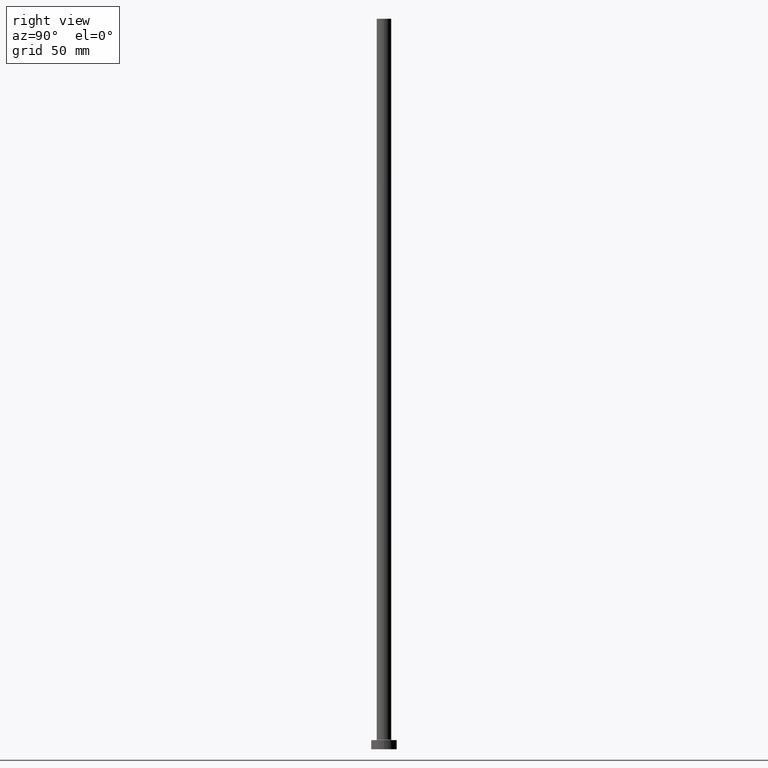
[diagram: clean part render]
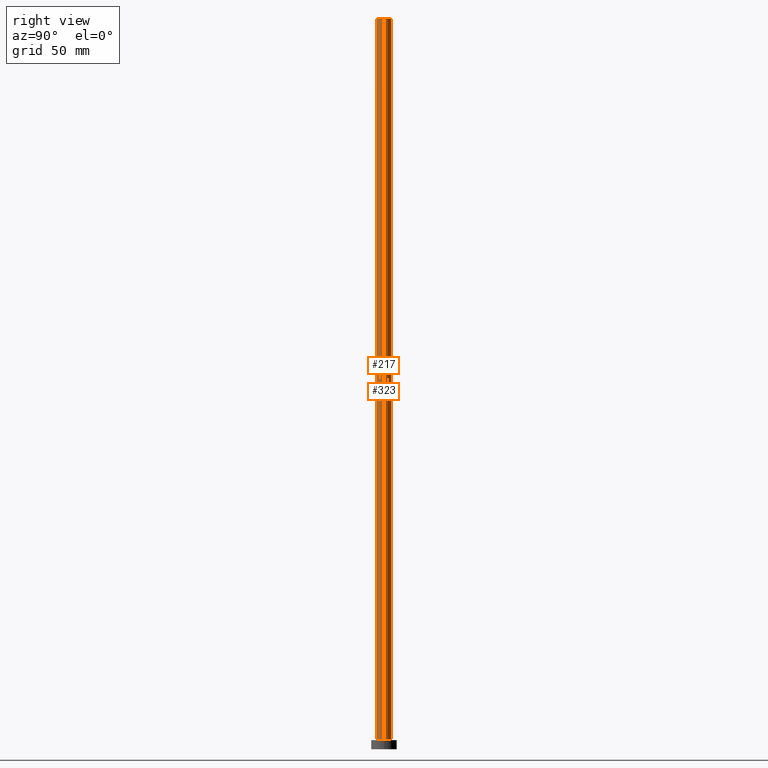
[diagram: same view with one multi-face feature highlighted, each face labeled with its STEP entity id]
A machine part, right view. The highlighted faces form ONE feature: a constant-radius fillet chain: 2 tangent blend faces with common blend radius 4 mm. The faces share edges in the B-rep.
Their STEP definitions:
[1] entity #323 (Cylinder):
#8 = DIRECTION ( 'NONE',  ( 1.000000000000000000, 0.000000000000000000, 0.000000000000000000 ) ) ;
#18 = CIRCLE ( 'NONE', #368, 4.000000000000000000 ) ;
#44 = CARTESIAN_POINT ( 'NONE',  ( 0.000000000000000000, 0.000000000000000000, 400.0000000000000000 ) ) ;
#45 = VERTEX_POINT ( 'NONE', #62 ) ;
#62 = CARTESIAN_POINT ( 'NONE',  ( 4.000000000000000000, 4.898587196589411843E-16, 400.0000000000000000 ) ) ;
#70 = FACE_OUTER_BOUND ( 'NONE', #410, .T. ) ;
#77 = CARTESIAN_POINT ( 'NONE',  ( 0.000000000000000000, 0.000000000000000000, 400.0000000000000000 ) ) ;
#84 = ORIENTED_EDGE ( 'NONE', *, *, #174, .F. ) ;
#109 = CARTESIAN_POINT ( 'NONE',  ( 4.000000000000000000, 4.898587196589411843E-16, 400.0000000000000000 ) ) ;
#118 = ORIENTED_EDGE ( 'NONE', *, *, #404, .T. ) ;
#137 = DIRECTION ( 'NONE',  ( -0.000000000000000000, -0.000000000000000000, -1.000000000000000000 ) ) ;
#141 = CYLINDRICAL_SURFACE ( 'NONE', #203, 4.000000000000000000 ) ;
#174 = EDGE_CURVE ( 'NONE', #216, #213, #276, .T. ) ;
#180 = DIRECTION ( 'NONE',  ( 1.000000000000000000, 0.000000000000000000, 0.000000000000000000 ) ) ;
#203 = AXIS2_PLACEMENT_3D ( 'NONE', #77, #391, #322 ) ;
#207 = LINE ( 'NONE', #109, #251 ) ;
#212 = CARTESIAN_POINT ( 'NONE',  ( 4.000000000000000000, 4.898587196589411843E-16, 5.500000000000005329 ) ) ;
#213 = VERTEX_POINT ( 'NONE', #313 ) ;
#216 = VERTEX_POINT ( 'NONE', #248 ) ;
#218 = CIRCLE ( 'NONE', #283, 4.000000000000000000 ) ;
#248 = CARTESIAN_POINT ( 'NONE',  ( -4.000000000000000000, 0.000000000000000000, 400.0000000000000000 ) ) ;
#251 = VECTOR ( 'NONE', #286, 1000.000000000000000 ) ;
#274 = ORIENTED_EDGE ( 'NONE', *, *, #353, .T. ) ;
#276 = LINE ( 'NONE', #314, #396 ) ;
#283 = AXIS2_PLACEMENT_3D ( 'NONE', #325, #358, #8 ) ;
#286 = DIRECTION ( 'NONE',  ( -0.000000000000000000, -0.000000000000000000, -1.000000000000000000 ) ) ;
#291 = DIRECTION ( 'NONE',  ( 0.000000000000000000, 0.000000000000000000, 1.000000000000000000 ) ) ;
#299 = ORIENTED_EDGE ( 'NONE', *, *, #407, .F. ) ;
#313 = CARTESIAN_POINT ( 'NONE',  ( -4.000000000000000000, 0.000000000000000000, 5.500000000000005329 ) ) ;
#314 = CARTESIAN_POINT ( 'NONE',  ( -4.000000000000000000, 0.000000000000000000, 400.0000000000000000 ) ) ;
#322 = DIRECTION ( 'NONE',  ( -1.000000000000000000, 0.000000000000000000, 0.000000000000000000 ) ) ;
#323 = ADVANCED_FACE ( 'NONE', ( #70 ), #141, .T. ) ;
#325 = CARTESIAN_POINT ( 'NONE',  ( 0.000000000000000000, 0.000000000000000000, 5.500000000000005329 ) ) ;
#353 = EDGE_CURVE ( 'NONE', #45, #380, #207, .T. ) ;
#358 = DIRECTION ( 'NONE',  ( 0.000000000000000000, 0.000000000000000000, 1.000000000000000000 ) ) ;
#368 = AXIS2_PLACEMENT_3D ( 'NONE', #44, #291, #180 ) ;
#380 = VERTEX_POINT ( 'NONE', #212 ) ;
#391 = DIRECTION ( 'NONE',  ( -0.000000000000000000, -0.000000000000000000, -1.000000000000000000 ) ) ;
#396 = VECTOR ( 'NONE', #137, 1000.000000000000000 ) ;
#404 = EDGE_CURVE ( 'NONE', #380, #213, #218, .T. ) ;
#407 = EDGE_CURVE ( 'NONE', #45, #216, #18, .T. ) ;
#410 = EDGE_LOOP ( 'NONE', ( #299, #274, #118, #84 ) ) ;
[2] entity #217 (Cylinder):
#35 = DIRECTION ( 'NONE',  ( -1.000000000000000000, 0.000000000000000000, 0.000000000000000000 ) ) ;
#45 = VERTEX_POINT ( 'NONE', #62 ) ;
#62 = CARTESIAN_POINT ( 'NONE',  ( 4.000000000000000000, 4.898587196589411843E-16, 400.0000000000000000 ) ) ;
#64 = FACE_OUTER_BOUND ( 'NONE', #78, .T. ) ;
#74 = ORIENTED_EDGE ( 'NONE', *, *, #260, .T. ) ;
#78 = EDGE_LOOP ( 'NONE', ( #250, #227, #103, #74 ) ) ;
#92 = EDGE_CURVE ( 'NONE', #216, #45, #184, .T. ) ;
#103 = ORIENTED_EDGE ( 'NONE', *, *, #174, .T. ) ;
#104 = DIRECTION ( 'NONE',  ( 1.000000000000000000, 0.000000000000000000, 0.000000000000000000 ) ) ;
#109 = CARTESIAN_POINT ( 'NONE',  ( 4.000000000000000000, 4.898587196589411843E-16, 400.0000000000000000 ) ) ;
#137 = DIRECTION ( 'NONE',  ( -0.000000000000000000, -0.000000000000000000, -1.000000000000000000 ) ) ;
#139 = CARTESIAN_POINT ( 'NONE',  ( 0.000000000000000000, 0.000000000000000000, 400.0000000000000000 ) ) ;
#174 = EDGE_CURVE ( 'NONE', #216, #213, #276, .T. ) ;
#184 = CIRCLE ( 'NONE', #452, 4.000000000000000000 ) ;
#193 = DIRECTION ( 'NONE',  ( 0.000000000000000000, 0.000000000000000000, 1.000000000000000000 ) ) ;
#207 = LINE ( 'NONE', #109, #251 ) ;
#212 = CARTESIAN_POINT ( 'NONE',  ( 4.000000000000000000, 4.898587196589411843E-16, 5.500000000000005329 ) ) ;
#213 = VERTEX_POINT ( 'NONE', #313 ) ;
#216 = VERTEX_POINT ( 'NONE', #248 ) ;
#217 = ADVANCED_FACE ( 'NONE', ( #64 ), #315, .T. ) ;
#226 = CIRCLE ( 'NONE', #438, 4.000000000000000000 ) ;
#227 = ORIENTED_EDGE ( 'NONE', *, *, #92, .F. ) ;
#229 = CARTESIAN_POINT ( 'NONE',  ( 0.000000000000000000, 0.000000000000000000, 400.0000000000000000 ) ) ;
#233 = DIRECTION ( 'NONE',  ( 1.000000000000000000, 0.000000000000000000, 0.000000000000000000 ) ) ;
#248 = CARTESIAN_POINT ( 'NONE',  ( -4.000000000000000000, 0.000000000000000000, 400.0000000000000000 ) ) ;
#250 = ORIENTED_EDGE ( 'NONE', *, *, #353, .F. ) ;
#251 = VECTOR ( 'NONE', #286, 1000.000000000000000 ) ;
#260 = EDGE_CURVE ( 'NONE', #213, #380, #226, .T. ) ;
#276 = LINE ( 'NONE', #314, #396 ) ;
#286 = DIRECTION ( 'NONE',  ( -0.000000000000000000, -0.000000000000000000, -1.000000000000000000 ) ) ;
#313 = CARTESIAN_POINT ( 'NONE',  ( -4.000000000000000000, 0.000000000000000000, 5.500000000000005329 ) ) ;
#314 = CARTESIAN_POINT ( 'NONE',  ( -4.000000000000000000, 0.000000000000000000, 400.0000000000000000 ) ) ;
#315 = CYLINDRICAL_SURFACE ( 'NONE', #446, 4.000000000000000000 ) ;
#344 = DIRECTION ( 'NONE',  ( -0.000000000000000000, -0.000000000000000000, -1.000000000000000000 ) ) ;
#349 = DIRECTION ( 'NONE',  ( 0.000000000000000000, 0.000000000000000000, 1.000000000000000000 ) ) ;
#353 = EDGE_CURVE ( 'NONE', #45, #380, #207, .T. ) ;
#380 = VERTEX_POINT ( 'NONE', #212 ) ;
#396 = VECTOR ( 'NONE', #137, 1000.000000000000000 ) ;
#438 = AXIS2_PLACEMENT_3D ( 'NONE', #454, #349, #104 ) ;
#446 = AXIS2_PLACEMENT_3D ( 'NONE', #139, #344, #35 ) ;
#452 = AXIS2_PLACEMENT_3D ( 'NONE', #229, #193, #233 ) ;
#454 = CARTESIAN_POINT ( 'NONE',  ( 0.000000000000000000, 0.000000000000000000, 5.500000000000005329 ) ) ;